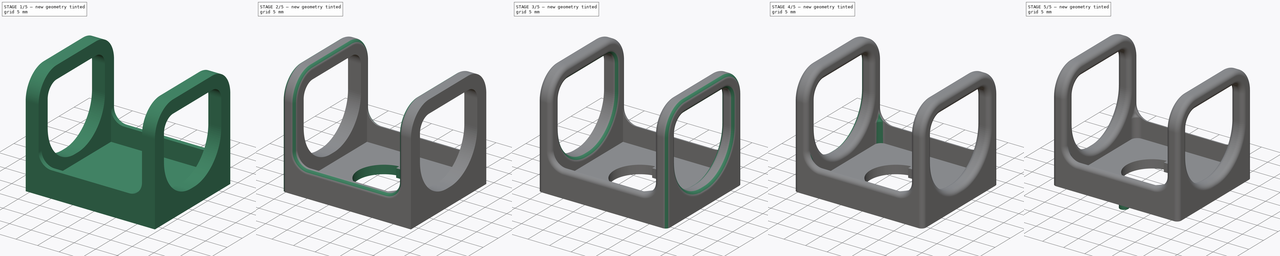
[diagram: build sequence overview — one tinted view per stage of 5, left to right]
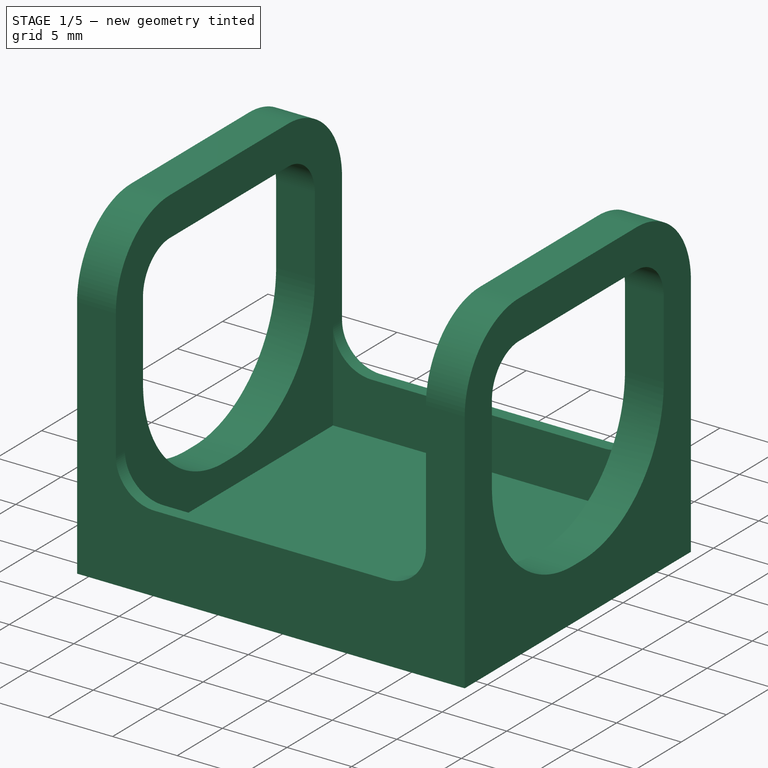
[diagram: stage 1 of 5 — iso view after this stage's code; geometry added in this stage tinted green]
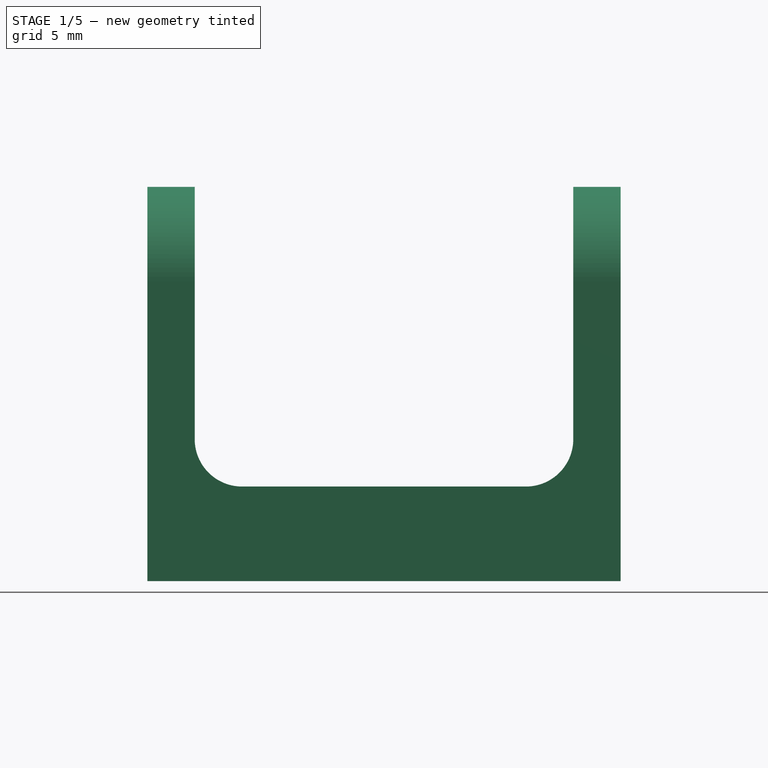
[diagram: stage 1 of 5 — front view after this stage's code; geometry added in this stage tinted green]
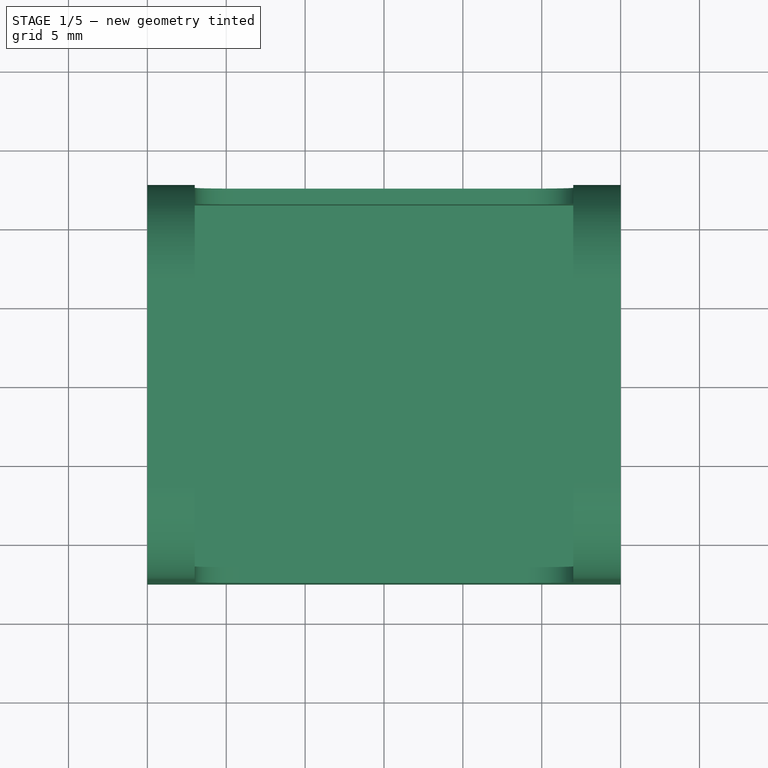
[diagram: stage 1 of 5 — top view after this stage's code; geometry added in this stage tinted green]
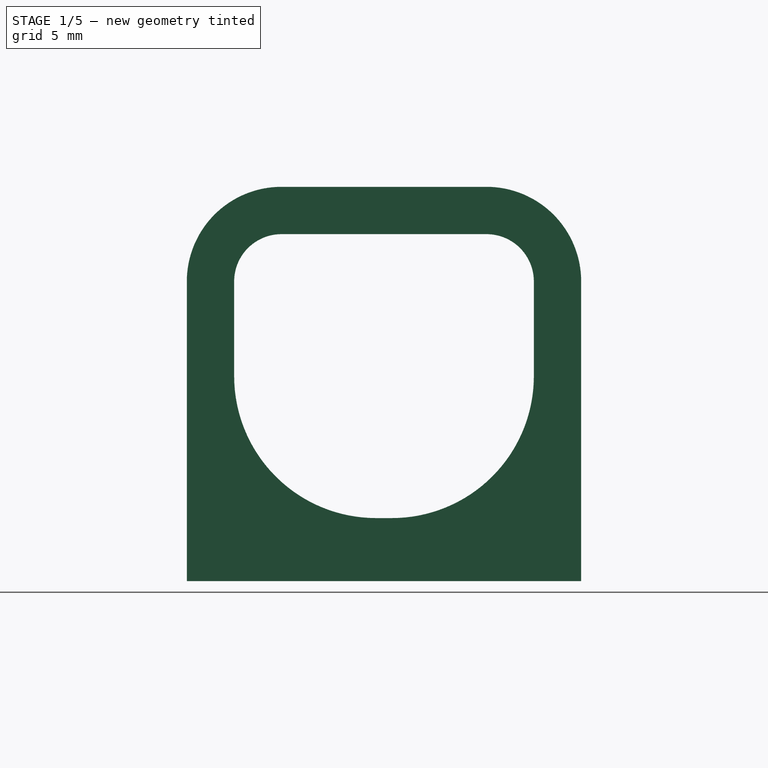
[diagram: stage 1 of 5 — right view after this stage's code; geometry added in this stage tinted green]
FCSTD DOCUMENT
Label: NASA-switch-guard
objects: PartDesign::Fillet×11, Sketcher::SketchObject×5, PartDesign::Pocket×3, PartDesign::Pad×2
note: 26 computed .brp shape members not serialized (recipe doc carries the construction recipe); baked Part::Feature solids carry a one-line shape summary decoded from their .brp

FEATURE [Sketcher::SketchObject] Sketch  label="Profile"
  Placement = pos=(0,0,0) rot=(0.57735,0.57735,0.57735;2.0944rad)
  sketch-geometry (14):
    g0: LineSegment StartX=-12.5 StartY=19 StartZ=0 EndX=-12.5 EndY=0 EndZ=0
    g1: LineSegment StartX=-12.5 StartY=0 StartZ=0 EndX=12.5 EndY=0 EndZ=0
    g2: LineSegment StartX=12.5 StartY=0 StartZ=0 EndX=12.5 EndY=19 EndZ=0
    g3: LineSegment StartX=-6.5 StartY=22 StartZ=0 EndX=6.5 EndY=22 EndZ=0
    g4: LineSegment StartX=9.5 StartY=19 StartZ=0 EndX=9.5 EndY=13 EndZ=0
    g5: LineSegment StartX=0.5 StartY=4 StartZ=0 EndX=-0.5 EndY=4 EndZ=0
    g6: LineSegment StartX=-9.5 StartY=13 StartZ=0 EndX=-9.5 EndY=19 EndZ=0
    g7: LineSegment StartX=-6.5 StartY=25 StartZ=0 EndX=6.5 EndY=25 EndZ=0
    g8: ArcOfCircle CenterX=-6.5 CenterY=19 CenterZ=0 NormalX=0 NormalY=0 NormalZ=1 Radius=6 StartAngle=1.5708 EndAngle=3.14159
    g9: ArcOfCircle CenterX=6.5 CenterY=19 CenterZ=0 NormalX=0 NormalY=0 NormalZ=1 Radius=6 StartAngle=0 EndAngle=1.5708
    g10: ArcOfCircle CenterX=6.5 CenterY=19 CenterZ=0 NormalX=0 NormalY=0 NormalZ=1 Radius=3 StartAngle=0 EndAngle=1.5708
    g11: ArcOfCircle CenterX=-6.5 CenterY=19 CenterZ=0 NormalX=0 NormalY=0 NormalZ=1 Radius=3 StartAngle=1.5708 EndAngle=3.14159
    g12: ArcOfCircle CenterX=-0.5 CenterY=13 CenterZ=0 NormalX=0 NormalY=0 NormalZ=1 Radius=9 StartAngle=3.14159 EndAngle=4.71239
    g13: ArcOfCircle CenterX=0.5 CenterY=13 CenterZ=0 NormalX=0 NormalY=0 NormalZ=1 Radius=9 StartAngle=4.71239 EndAngle=6.28319
  constraints (34):
    c: Vertical(g0)
    c: Coincident(g0,g1)
    c: Horizontal(g1)
    c: Coincident(g1,g2)
    c: Vertical(g2)
    c: Horizontal(g5)
    c: Vertical(g4)
    c: Vertical(g6)
    c: Symmetric(g0,g1,g-2)
    c: PointOnObject(g1,g-1)
    c: Horizontal(g7)
    c: Tangent(g0,g8)
    c: Tangent(g7,g8)
    c: Tangent(g2,g9)
    c: Tangent(g7,g9)
    c: Tangent(g3,g10)
    c: Tangent(g4,g10)
    c: Tangent(g3,g11)
    c: Tangent(g6,g11)
    c: Tangent(g5,g12)
    c: Tangent(g6,g12)
    c: Tangent(g4,g13)
    c: Tangent(g5,g13)
    c: Symmetric(g5,g5,g-2)
    c: Distance(g5) = 1
    c: DistanceY(g5,g1) = -4
    c: Distance(g1) = 25
    c: Symmetric(g3,g3,g-2)
    c: Equal(g10,g11)
    c: Coincident(g9,g10)
    c: Coincident(g8,g11)
    c: Radius(g10) = 3
    c: DistanceY(g7,g1) = -25
    c: DistanceY(g3,g7) = 3
FEATURE [PartDesign::Pad] Pad  label="Rails"
  Length = 30
  Length2 = 100
  Placement = pos=(0,0,0) rot=(0.57735,0.57735,0.57735;2.0944rad)
  Sketch = -> Sketch
  Type = 0
FEATURE [Sketcher::SketchObject] Sketch001  label="Top"
  ExternalGeometry = -> [Pad]
  Placement = pos=(0,0,25) rot=(0,0,-1;1.5708rad)
  Support = -> Pad [Face6]
  sketch-geometry (4):
    g0: LineSegment StartX=-11.5 StartY=27 StartZ=0 EndX=11.5 EndY=27 EndZ=0
    g1: LineSegment StartX=11.5 StartY=27 StartZ=0 EndX=11.5 EndY=3 EndZ=0
    g2: LineSegment StartX=11.5 StartY=3 StartZ=0 EndX=-11.5 EndY=3 EndZ=0
    g3: LineSegment StartX=-11.5 StartY=3 StartZ=0 EndX=-11.5 EndY=27 EndZ=0
  constraints (12):
    c: Coincident(g0,g1)
    c: Coincident(g1,g2)
    c: Coincident(g2,g3)
    c: Coincident(g3,g0)
    c: Horizontal(g0)
    c: Horizontal(g2)
    c: Vertical(g1)
    c: Vertical(g3)
    c: DistanceY(g0,g-3) = 3
    c: DistanceY(g1,g-3) = -3
    c: DistanceX(g0,g-3) = 1
    c: DistanceX(g0,g-4) = -1
FEATURE [PartDesign::Pocket] Pocket  label="Tray"
  Length = 23
  Placement = pos=(0,0,0) rot=(0.57735,0.57735,0.57735;2.0944rad)
  Sketch = -> Sketch001
  Type = 0
FEATURE [Sketcher::SketchObject] Sketch002  label="Side"
  ExternalGeometry = -> [Pocket]
  Placement = pos=(0,-12.5,0) rot=(-0.57735,-0.57735,0.57735;4.18879rad)
  Support = -> Pocket [Face6]
  sketch-geometry (6):
    g0: LineSegment StartX=-25 StartY=27 StartZ=0 EndX=-9 EndY=27 EndZ=0
    g1: LineSegment StartX=-6 StartY=24 StartZ=0 EndX=-6 EndY=6 EndZ=0
    g2: LineSegment StartX=-9 StartY=3 StartZ=0 EndX=-25 EndY=3 EndZ=0
    g3: LineSegment StartX=-25 StartY=3 StartZ=0 EndX=-25 EndY=27 EndZ=0
    g4: ArcOfCircle CenterX=-9 CenterY=24 CenterZ=0 NormalX=0 NormalY=0 NormalZ=1 Radius=3 StartAngle=0 EndAngle=1.5708
    g5: ArcOfCircle CenterX=-9 CenterY=6 CenterZ=0 NormalX=0 NormalY=0 NormalZ=1 Radius=3 StartAngle=4.71239 EndAngle=6.28319
  constraints (16):
    c: Coincident(g2,g3)
    c: Coincident(g3,g0)
    c: Horizontal(g0)
    c: Horizontal(g2)
    c: Vertical(g1)
    c: Vertical(g3)
    c: DistanceX(g-4,g0) = 0
    c: Tangent(g0,g4)
    c: Tangent(g1,g4)
    c: Tangent(g1,g5)
    c: Tangent(g2,g5)
    c: Equal(g4,g5)
    c: Radius(g4) = 3
    c: DistanceY(g-1,g2) = 3
    c: DistanceY(g0,g-3) = 3
    c: DistanceX(g1,g-3) = 6
FEATURE [PartDesign::Pocket] Pocket001  label="Plain_noholes"
  Length = 5
  Placement = pos=(0,0,0) rot=(0.57735,0.57735,0.57735;2.0944rad)
  Sketch = -> Sketch002
  Type = 1
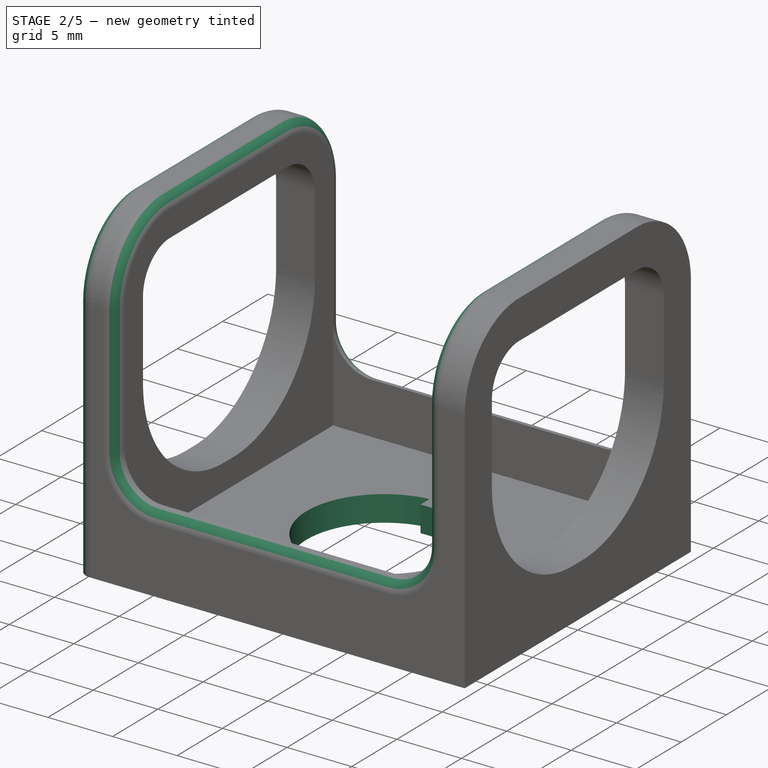
[diagram: stage 2 of 5 — iso view after this stage's code; geometry added in this stage tinted green]
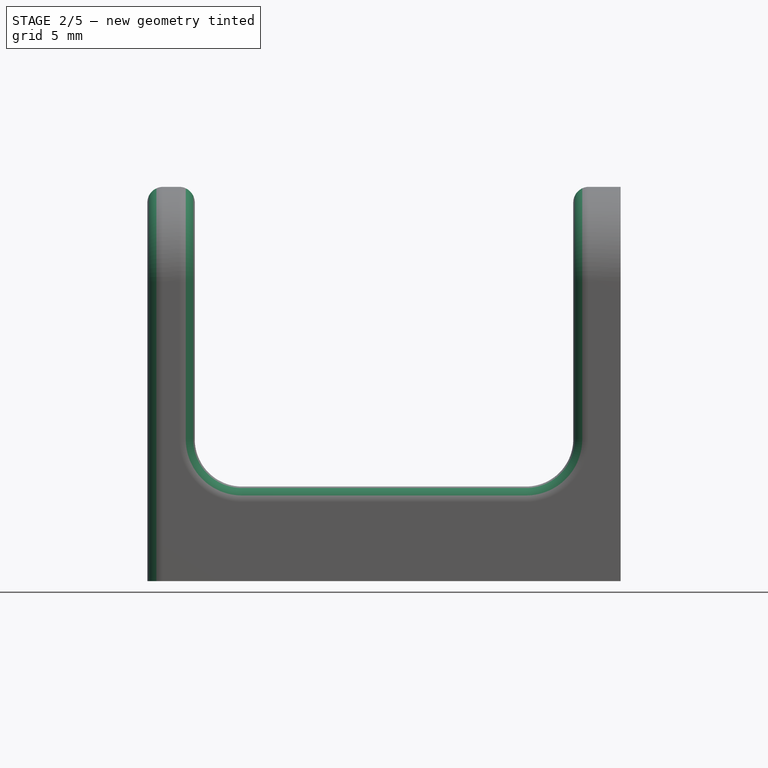
[diagram: stage 2 of 5 — front view after this stage's code; geometry added in this stage tinted green]
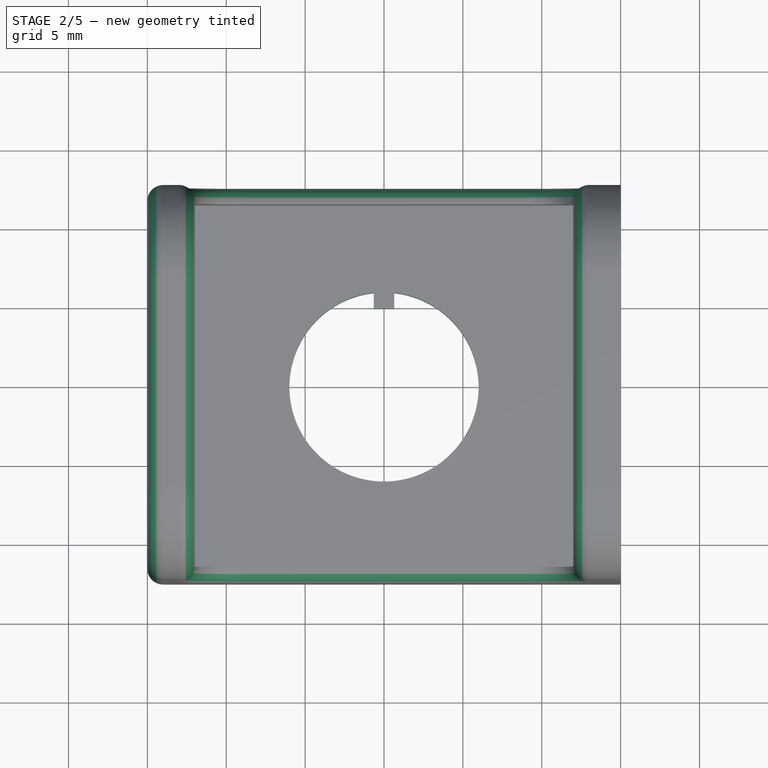
[diagram: stage 2 of 5 — top view after this stage's code; geometry added in this stage tinted green]
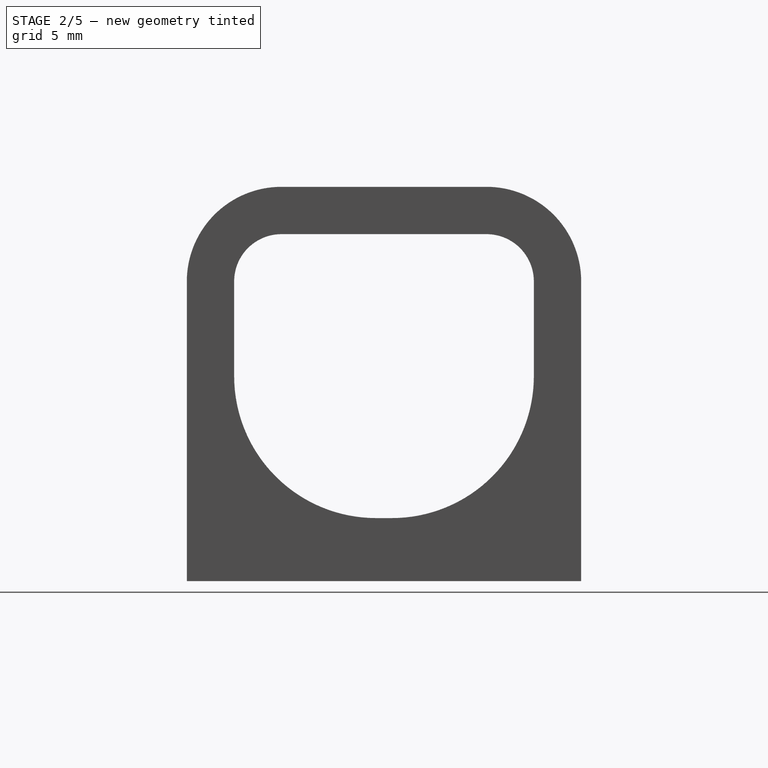
[diagram: stage 2 of 5 — right view after this stage's code; geometry added in this stage tinted green]
FEATURE [Sketcher::SketchObject] Sketch003  label="Hole"
  ExternalGeometry = -> [Pocket001]
  Placement = pos=(0,0,0) rot=(0.707107,0.707107,0;3.14159rad)
  Support = -> Pocket001 [Face1]
  sketch-geometry (6):
    g0: ArcOfCircle CenterX=0 CenterY=15 CenterZ=0 NormalX=0 NormalY=0 NormalZ=1 Radius=6 StartAngle=0.108546 EndAngle=6.17464
    g1: LineSegment StartX=5.96469 StartY=14.35 StartZ=0 EndX=4.96469 EndY=14.35 EndZ=0
    g2: LineSegment StartX=4.96469 StartY=15.65 StartZ=0 EndX=5.96469 EndY=15.65 EndZ=0
    g3: LineSegment StartX=4.96469 StartY=14.35 StartZ=0 EndX=4.96469 EndY=15.65 EndZ=0
    g4: LineSegment [constr] StartX=0 StartY=15 StartZ=0 EndX=-12.5 EndY=30 EndZ=0
    g5: LineSegment [constr] StartX=0 StartY=15 StartZ=0 EndX=-12.5 EndY=0 EndZ=0
  constraints (17):
    c: Horizontal(g2)
    c: Coincident(g3,g2)
    c: Coincident(g2,g0)
    c: Coincident(g1,g0)
    c: Horizontal(g1)
    c: Vertical(g3)
    c: Coincident(g1,g3)
    c: Equal(g1,g2)
    c: Distance(g3) = 1.3
    c: Distance(g1) = 1
    c: PointOnObject(g0,g-2)
    c: Coincident(g4,g0)
    c: Coincident(g4,g-3)
    c: Coincident(g5,g0)
    c: Coincident(g5,g-3)
    c: Equal(g4,g5)
    c: Radius(g0) = 6
FEATURE [PartDesign::Pocket] Pocket002  label="Plain_withhole"
  Length = 5
  Placement = pos=(0,0,0) rot=(0.57735,0.57735,0.57735;2.0944rad)
  Sketch = -> Sketch003
  Type = 1
FEATURE [PartDesign::Fillet] Fillet
  Base = -> Pocket002 [Edge67]
  Placement = pos=(0,0,0) rot=(0.57735,0.57735,0.57735;2.0944rad)
  Radius = 0.99
FEATURE [PartDesign::Fillet] Fillet001
  Base = -> Fillet [Edge43]
  Placement = pos=(0,0,0) rot=(0.57735,0.57735,0.57735;2.0944rad)
  Radius = 1
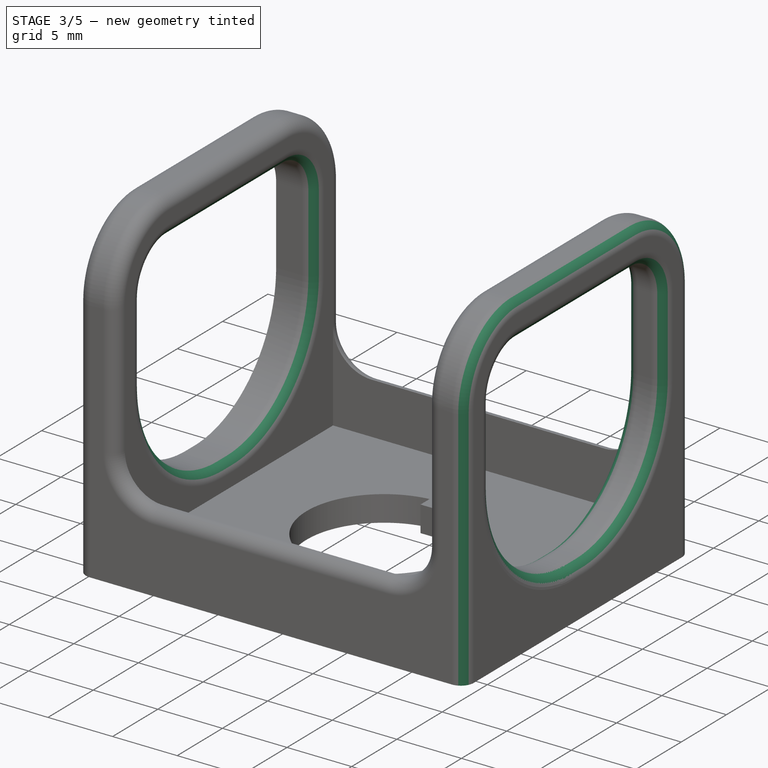
[diagram: stage 3 of 5 — iso view after this stage's code; geometry added in this stage tinted green]
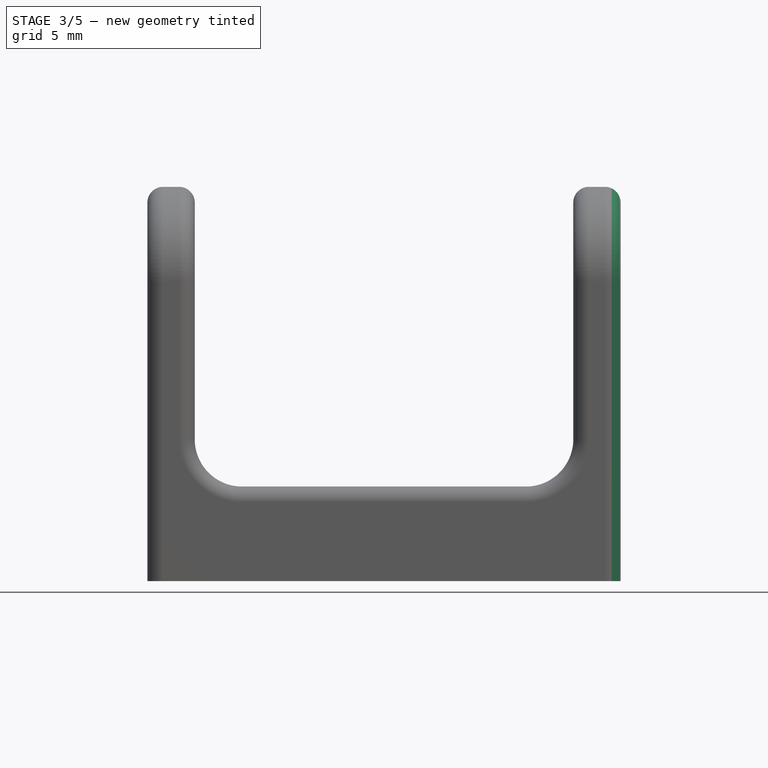
[diagram: stage 3 of 5 — front view after this stage's code; geometry added in this stage tinted green]
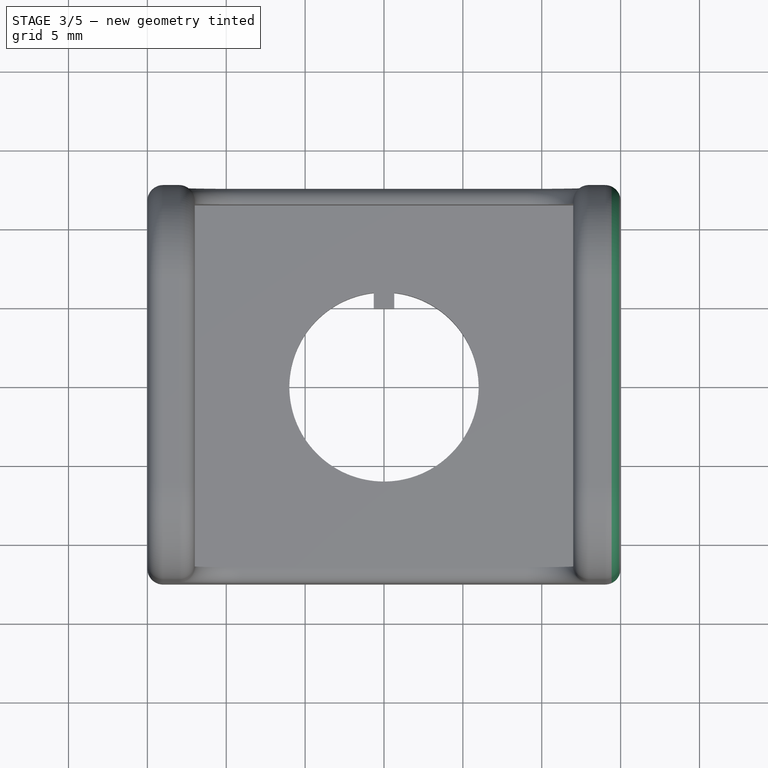
[diagram: stage 3 of 5 — top view after this stage's code; geometry added in this stage tinted green]
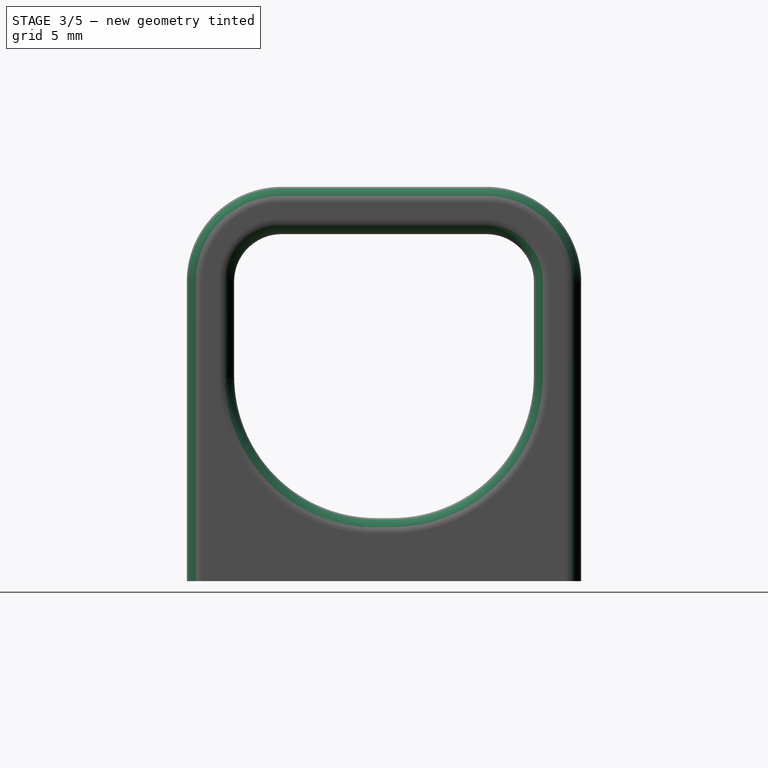
[diagram: stage 3 of 5 — right view after this stage's code; geometry added in this stage tinted green]
FEATURE [PartDesign::Fillet] Fillet002
  Base = -> Fillet001 [Edge25]
  Placement = pos=(0,0,0) rot=(0.57735,0.57735,0.57735;2.0944rad)
  Radius = 1
FEATURE [PartDesign::Fillet] Fillet003
  Base = -> Fillet002 [Edge140]
  Placement = pos=(0,0,0) rot=(0.57735,0.57735,0.57735;2.0944rad)
  Radius = 1
FEATURE [PartDesign::Fillet] Fillet004
  Base = -> Fillet003 [Edge111]
  Placement = pos=(0,0,0) rot=(0.57735,0.57735,0.57735;2.0944rad)
  Radius = 1
FEATURE [PartDesign::Fillet] Fillet005
  Base = -> Fillet004 [Edge52]
  Placement = pos=(0,0,0) rot=(0.57735,0.57735,0.57735;2.0944rad)
  Radius = 1
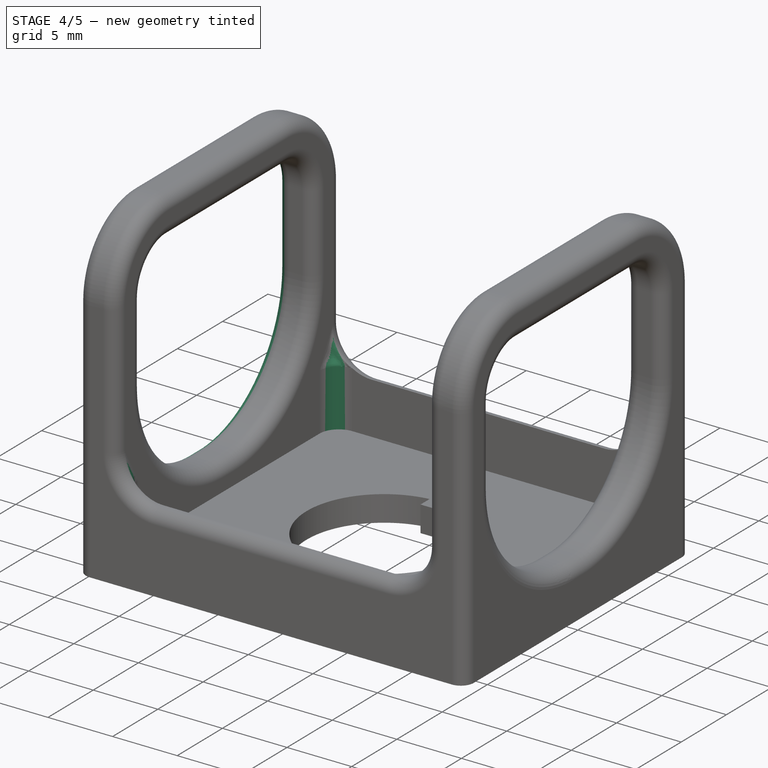
[diagram: stage 4 of 5 — iso view after this stage's code; geometry added in this stage tinted green]
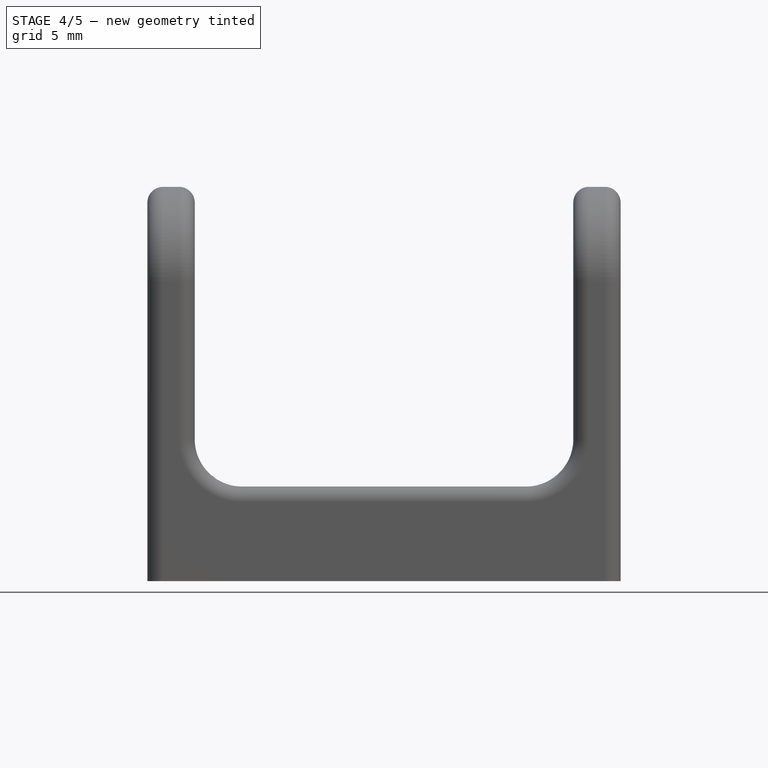
[diagram: stage 4 of 5 — front view after this stage's code; geometry added in this stage tinted green]
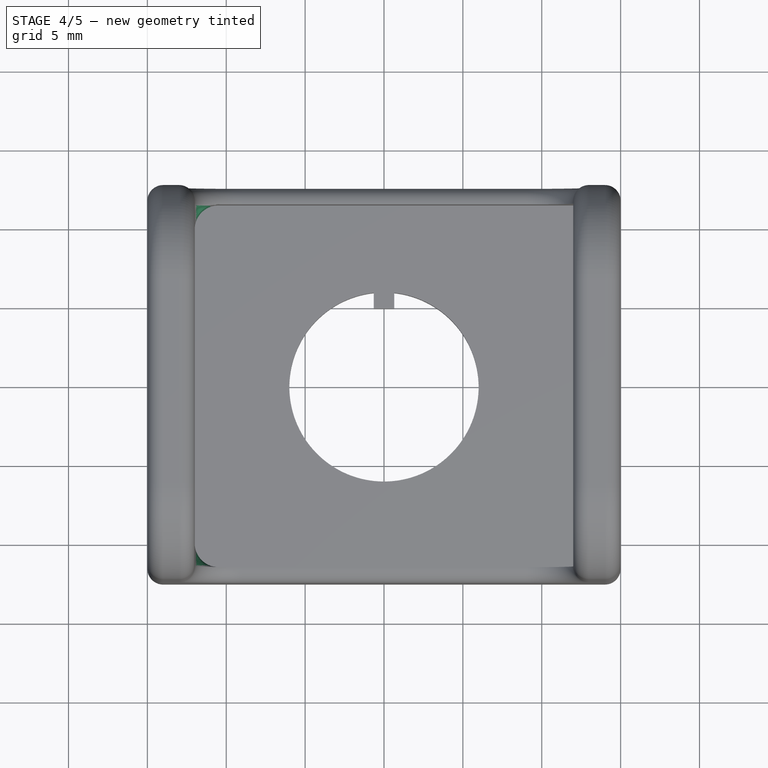
[diagram: stage 4 of 5 — top view after this stage's code; geometry added in this stage tinted green]
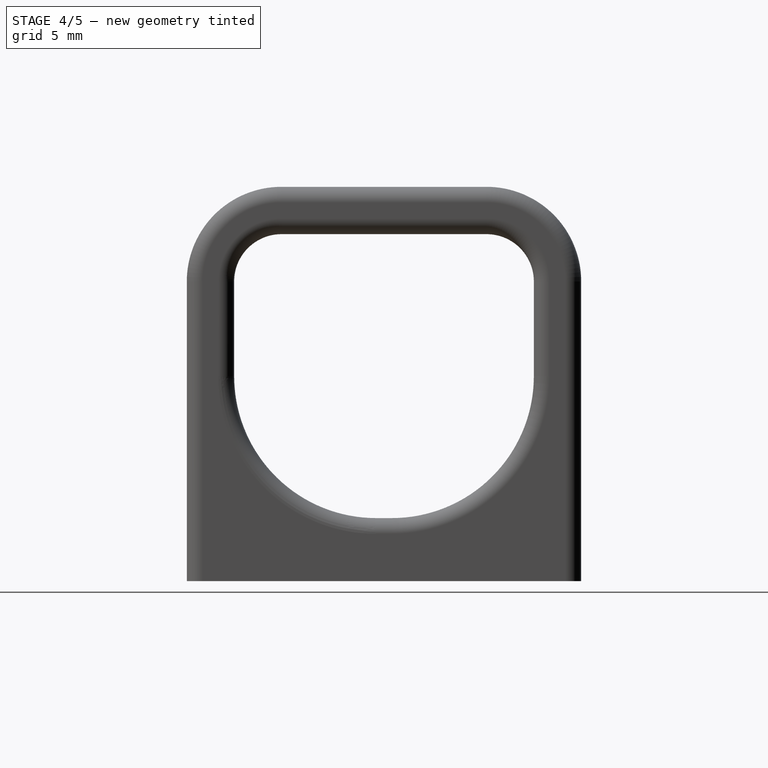
[diagram: stage 4 of 5 — right view after this stage's code; geometry added in this stage tinted green]
FEATURE [PartDesign::Fillet] Fillet006
  Base = -> Fillet005 [Edge157]
  Placement = pos=(0,0,0) rot=(0.57735,0.57735,0.57735;2.0944rad)
  Radius = 1
FEATURE [PartDesign::Fillet] Fillet007
  Base = -> Fillet006 [Edge202]
  Placement = pos=(0,0,0) rot=(0.57735,0.57735,0.57735;2.0944rad)
  Radius = 1.5
FEATURE [PartDesign::Fillet] Fillet008
  Base = -> Fillet007 [Edge23]
  Placement = pos=(0,0,0) rot=(0.57735,0.57735,0.57735;2.0944rad)
  Radius = 1.5
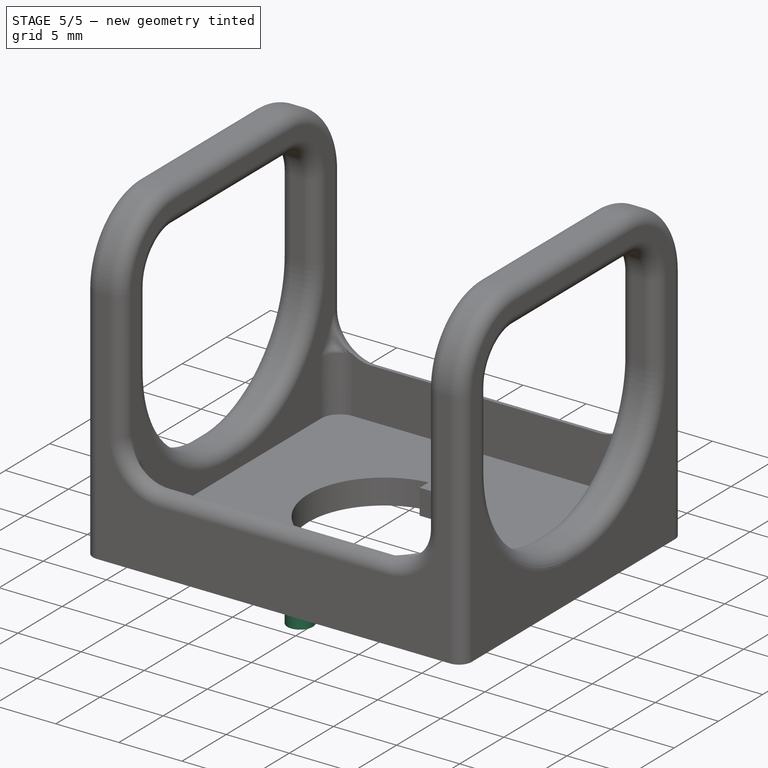
[diagram: stage 5 of 5 — iso view after this stage's code; geometry added in this stage tinted green]
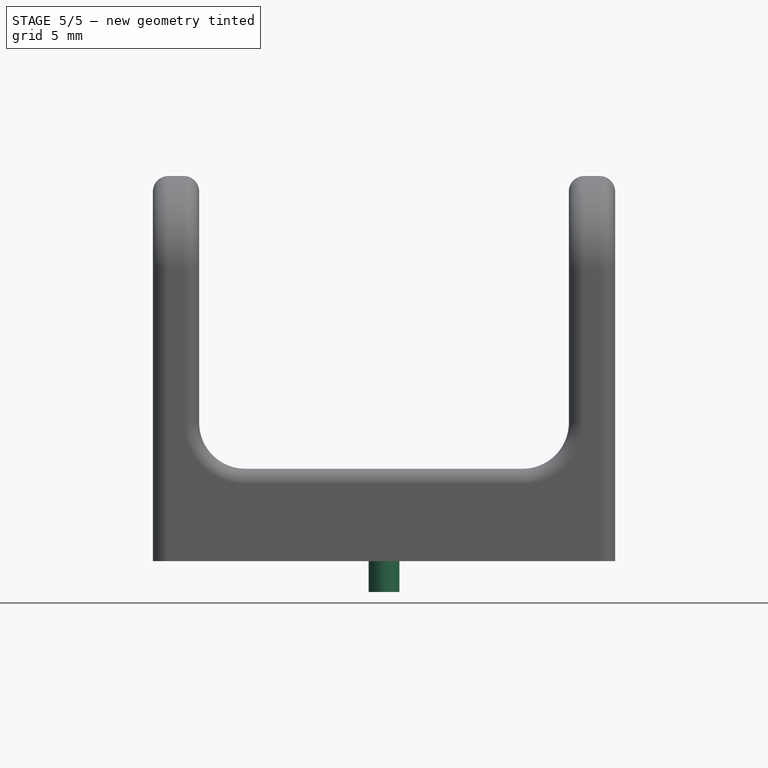
[diagram: stage 5 of 5 — front view after this stage's code; geometry added in this stage tinted green]
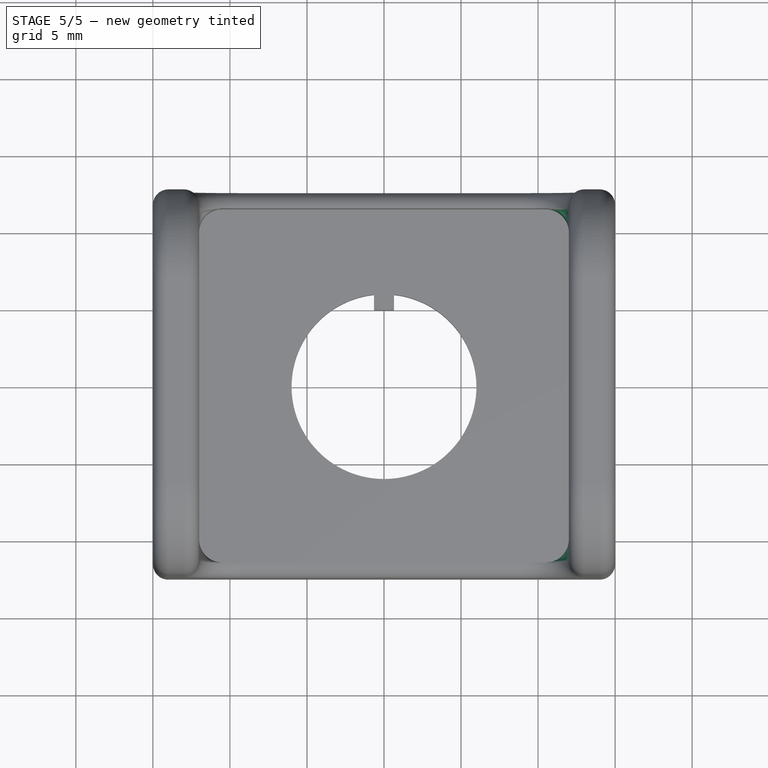
[diagram: stage 5 of 5 — top view after this stage's code; geometry added in this stage tinted green]
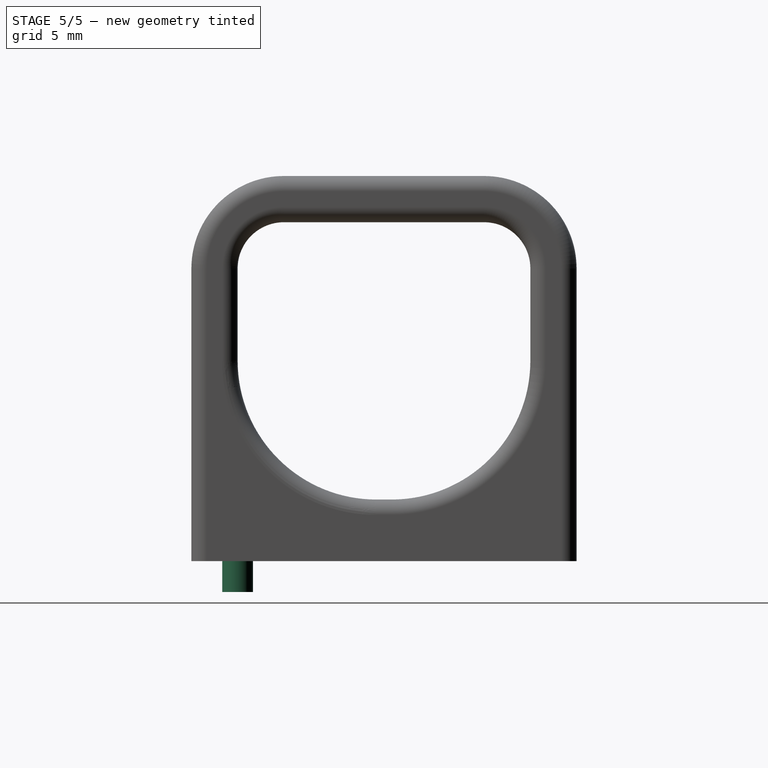
[diagram: stage 5 of 5 — right view after this stage's code; geometry added in this stage tinted green]
FEATURE [PartDesign::Fillet] Fillet009
  Base = -> Fillet008 [Edge31]
  Placement = pos=(0,0,0) rot=(0.57735,0.57735,0.57735;2.0944rad)
  Radius = 1.5
FEATURE [PartDesign::Fillet] Fillet010  label="Smooth_nopin"
  Base = -> Fillet009 [Edge26]
  Placement = pos=(0,0,0) rot=(0.57735,0.57735,0.57735;2.0944rad)
  Radius = 1.5
FEATURE [Sketcher::SketchObject] Sketch004  label="Pin"
  ExternalGeometry = -> [Fillet010]
  Placement = pos=(0,0,0) rot=(0.707107,0.707107,0;3.14159rad)
  Support = -> Fillet010 [Face30]
  sketch-geometry (3):
    g0: Circle CenterX=-9.5 CenterY=15 CenterZ=0 NormalX=0 NormalY=0 NormalZ=1 Radius=1
    g1: LineSegment [constr] StartX=-12.5 StartY=29 StartZ=0 EndX=-9.5 EndY=15 EndZ=0
    g2: LineSegment [constr] StartX=-9.5 StartY=15 StartZ=0 EndX=-12.5 EndY=1 EndZ=0
  constraints (7):
    c: Coincident(g2,g0)
    c: Coincident(g1,g-3)
    c: Coincident(g2,g-3)
    c: Equal(g1,g2)
    c: DistanceX(g0,g1) = -3
    c: Radius(g0) = 1
    c: Coincident(g1,g0)
FEATURE [PartDesign::Pad] Pad001  label="Smooth_regpin"
  Length = 2
  Length2 = 100
  Placement = pos=(0,0,0) rot=(0.57735,0.57735,0.57735;2.0944rad)
  Sketch = -> Sketch004
  Type = 0
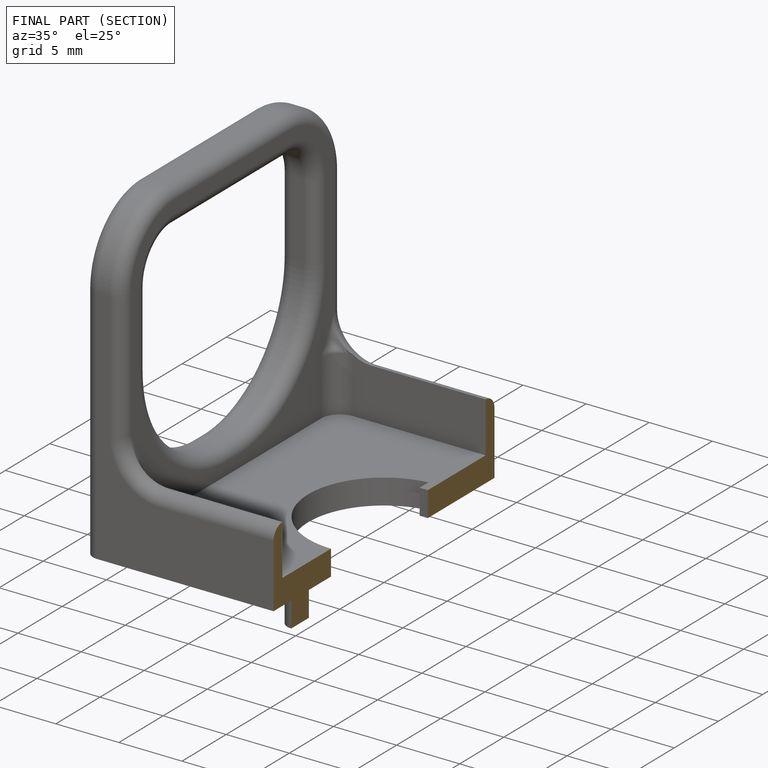
[diagram: finished part — half-section view (interior)]
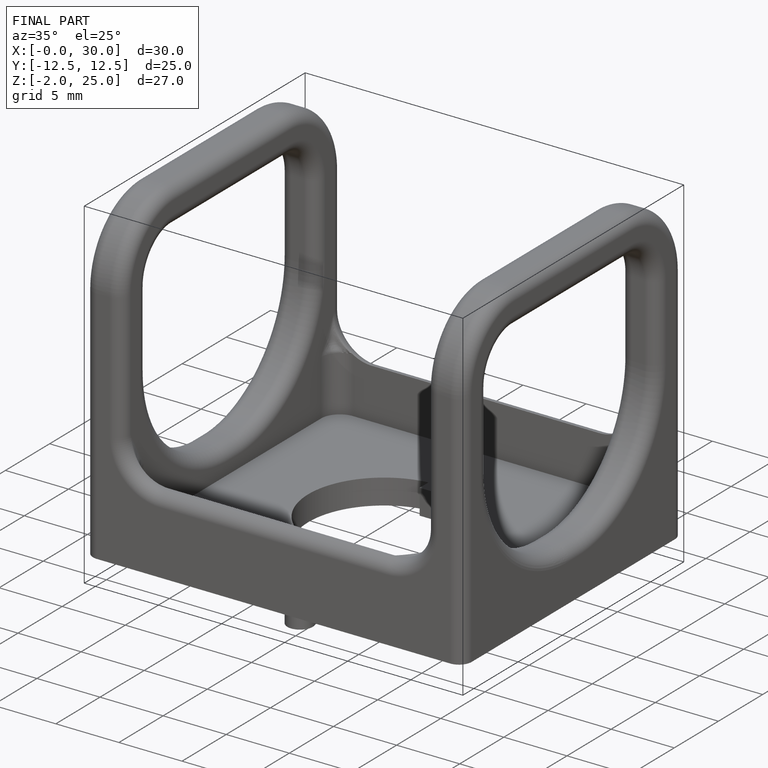
[diagram: finished part — iso view with bounding-box wireframe]
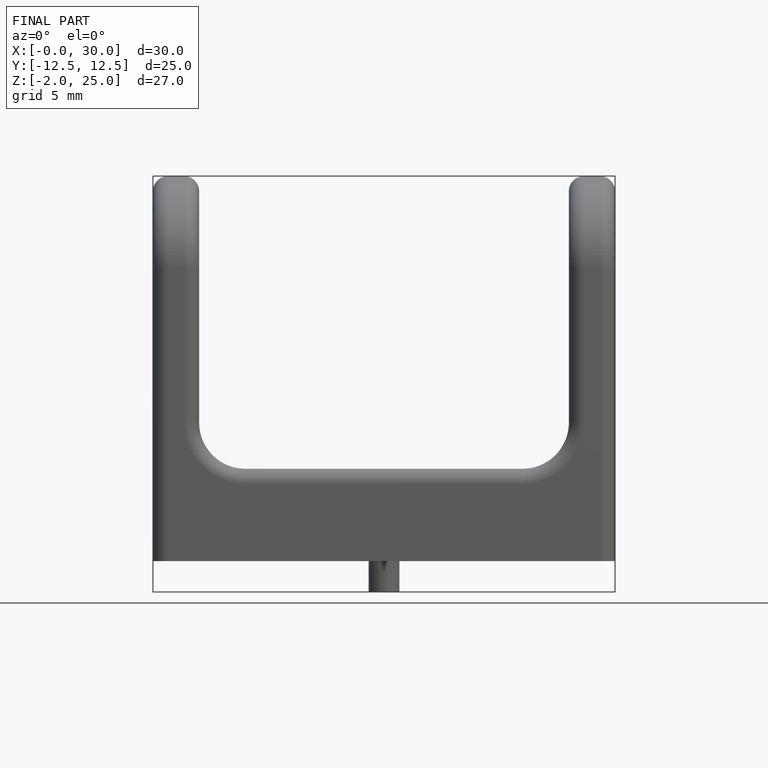
[diagram: finished part — front view with bounding-box wireframe]
